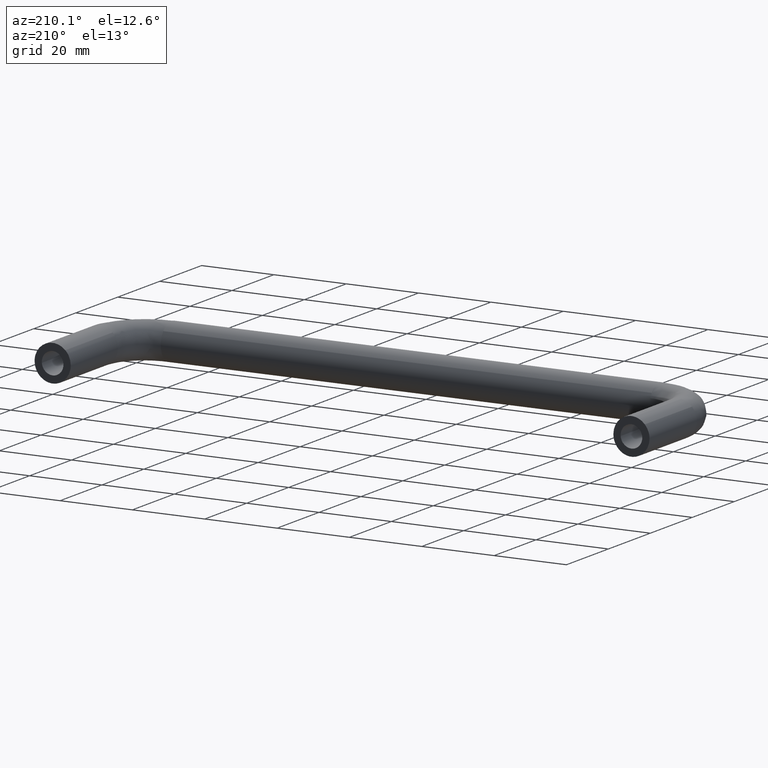
[diagram: clean part render]
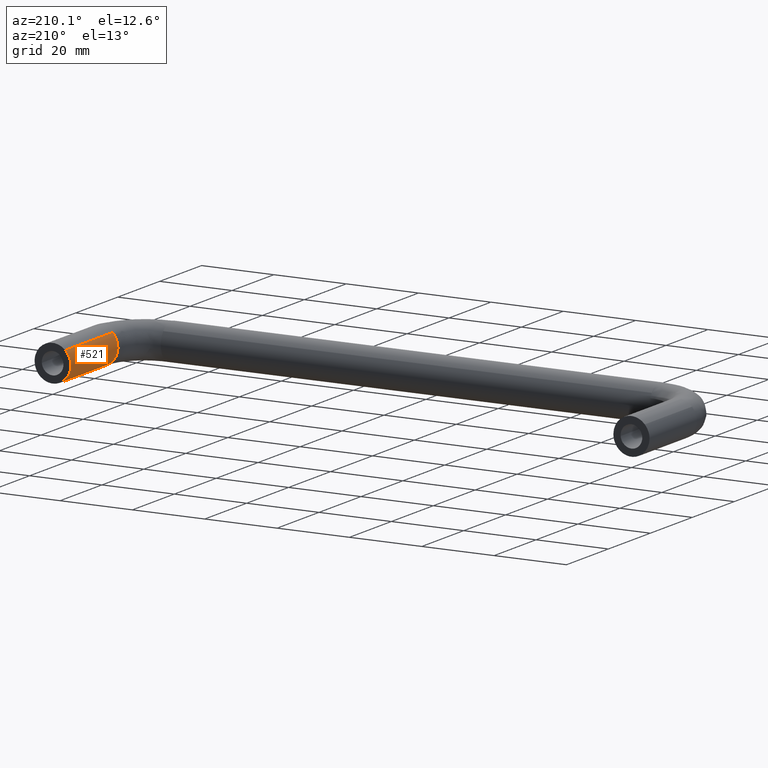
[diagram: same view with one face highlighted and labeled with its STEP entity id]
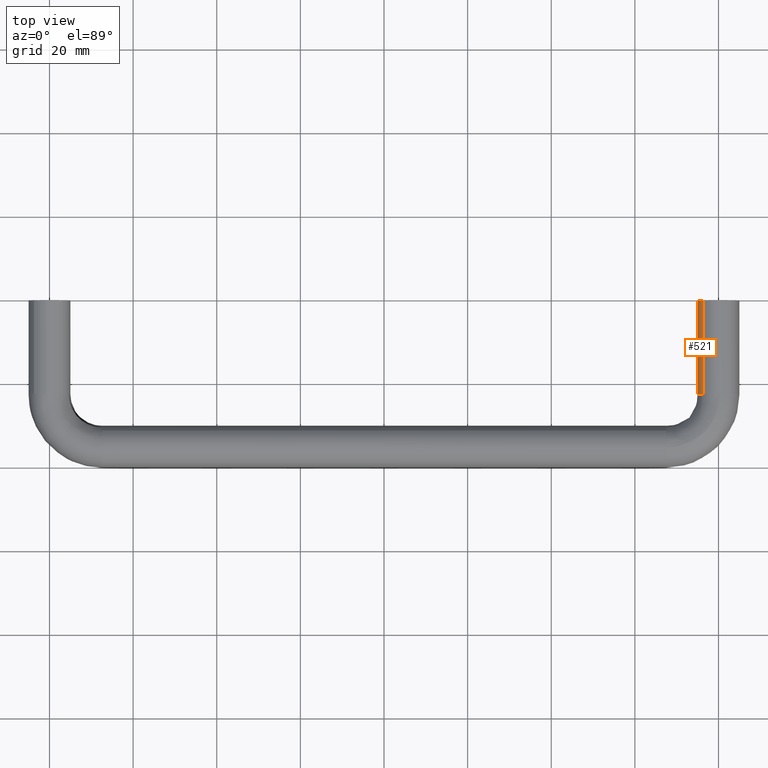
[diagram: same view with one face highlighted and labeled with its STEP entity id]
A machine part, auxiliary view. The second image highlights one B-rep face of the part: STEP entity #521.
A second angle (top view) of the same face is appended — the face is thin or edge-on in the first view.
In plain terms, the highlighted face is a freeform B-spline surface patch.
Its self-contained STEP definition (entity closure, byte-faithful):
#408=CARTESIAN_POINT('',(163.294847860799680,-23.062500001555396,-3.760847986050986));
#409=CARTESIAN_POINT('',(159.743278128228550,-23.062500001555399,-6.872348897346878));
#410=CARTESIAN_POINT('',(156.433747754229100,-23.062500001555389,-3.504546321499253));
#411=CARTESIAN_POINT('',(152.929201432729880,-23.062500001555389,0.061705924271653));
#412=CARTESIAN_POINT('',(156.495453678500810,-23.062500001555389,3.566252245770907));
#413=CARTESIAN_POINT('',(163.294847860799680,0.576562500038907,-3.760847986050986));
#414=CARTESIAN_POINT('',(159.743278128228550,0.576562500038907,-6.872348897346878));
#415=CARTESIAN_POINT('',(156.433747754229100,0.576562500038907,-3.504546321499253));
#416=CARTESIAN_POINT('',(152.929201432729880,0.576562500038908,0.061705924271653));
#417=CARTESIAN_POINT('',(156.495453678500810,0.576562500038908,3.566252245770907));
#425=(BOUNDED_SURFACE()B_SPLINE_SURFACE(2,1,((#408,#413),(#409,#414),(#410,#415),(#411,#416),(#412,#417)),.UNSPECIFIED.,.F.,.F.,.U.)B_SPLINE_SURFACE_WITH_KNOTS((3,2,3),(2,2),(0.0,7.952900397563421,16.237171645025320),(0.0,23.639062501594299),.UNSPECIFIED.)GEOMETRIC_REPRESENTATION_ITEM()RATIONAL_B_SPLINE_SURFACE(((0.977505800795127,0.977505800795127),(0.718822509939086,0.718822509939086),(1.0,1.0),(0.707106781186548,0.707106781186548),(1.0,1.0)))REPRESENTATION_ITEM('')SURFACE());
#426=CARTESIAN_POINT('',(163.294846744962510,-22.499999999999972,-3.760848963626144));
#427=VERTEX_POINT('',#426);
#428=CARTESIAN_POINT('',(159.937169799699600,-22.500000000789459,-4.999605221007975));
#429=VERTEX_POINT('',#428);
#430=CARTESIAN_POINT('',(163.294846744962570,-22.499999999999996,-3.760848963626326));
#431=CARTESIAN_POINT('',(161.880438048094560,-22.499999999999993,-5.0));
#432=CARTESIAN_POINT('',(160.0,-22.500000000000000,-5.0));
#433=CARTESIAN_POINT('',(159.968583659156850,-22.500000000000000,-5.000000000000001));
#434=CARTESIAN_POINT('',(159.937169799699660,-22.500000000789463,-4.999605221007975));
#442=(BOUNDED_CURVE()B_SPLINE_CURVE(2,(#430,#431,#432,#433,#434),.UNSPECIFIED.,.F.,.U.)B_SPLINE_CURVE_WITH_KNOTS((3,2,3),(0.134954764893290,0.250000000000000,0.252215704140435),.UNSPECIFIED.)CURVE()GEOMETRIC_REPRESENTATION_ITEM()RATIONAL_B_SPLINE_CURVE((0.854482188675951,0.865216123121782,1.0,0.997404141129478,0.994854295500936))REPRESENTATION_ITEM(''));
#443=EDGE_CURVE('',#427,#429,#442,.T.);
#444=ORIENTED_EDGE('',*,*,#443,.T.);
#445=CARTESIAN_POINT('',(155.0,-22.500000000000000,0.0));
#446=VERTEX_POINT('',#445);
#447=CARTESIAN_POINT('',(159.937169799699690,-22.500000000789456,-4.999605221007975));
#448=CARTESIAN_POINT('',(155.000000000000030,-22.499999999999993,-4.937559647791153));
#449=CARTESIAN_POINT('',(155.0,-22.500000000000000,0.0));
#457=(BOUNDED_CURVE()B_SPLINE_CURVE(2,(#447,#448,#449),.UNSPECIFIED.,.F.,.U.)B_SPLINE_CURVE_WITH_KNOTS((3,3),(0.252215704140436,0.500000000000000),.UNSPECIFIED.)CURVE()GEOMETRIC_REPRESENTATION_ITEM()RATIONAL_B_SPLINE_CURVE((0.994854295500935,0.709702640057070,1.0))REPRESENTATION_ITEM(''));
#458=EDGE_CURVE('',#429,#446,#457,.T.);
#459=ORIENTED_EDGE('',*,*,#458,.T.);
#460=CARTESIAN_POINT('',(156.495454233629910,-22.500000000000000,3.566252791294635));
#461=VERTEX_POINT('',#460);
#462=CARTESIAN_POINT('',(155.0,-22.500000000000000,0.0));
#463=CARTESIAN_POINT('',(155.000000000000060,-22.500000000000004,2.096674923959875));
#464=CARTESIAN_POINT('',(156.495454233629940,-22.499999999999996,3.566252791294634));
#472=(BOUNDED_CURVE()B_SPLINE_CURVE(2,(#462,#463,#464),.UNSPECIFIED.,.F.,.U.)B_SPLINE_CURVE_WITH_KNOTS((3,3),(0.500000000000000,0.626316804567075),.UNSPECIFIED.)CURVE()GEOMETRIC_REPRESENTATION_ITEM()RATIONAL_B_SPLINE_CURVE((1.0,0.852010658080478,0.853569642411023))REPRESENTATION_ITEM(''));
#473=EDGE_CURVE('',#446,#461,#472,.T.);
#474=ORIENTED_EDGE('',*,*,#473,.T.);
#475=CARTESIAN_POINT('',(156.495454226941400,2.256528E-014,3.566252784721851));
#476=VERTEX_POINT('',#475);
#477=CARTESIAN_POINT('',(156.495454233629910,-22.500000000000000,3.566252791294635));
#478=CARTESIAN_POINT('',(156.495454226941400,2.256528E-014,3.566252784721851));
#479=QUASI_UNIFORM_CURVE('',1,(#477,#478),.UNSPECIFIED.,.F.,.U.);
#480=EDGE_CURVE('',#461,#476,#479,.T.);
#481=ORIENTED_EDGE('',*,*,#480,.T.);
#482=CARTESIAN_POINT('',(155.0,2.081668E-014,0.0));
#483=VERTEX_POINT('',#482);
#484=CARTESIAN_POINT('',(155.0,2.081668E-014,0.0));
#485=CARTESIAN_POINT('',(155.000000000000060,2.081668E-014,2.096674912933399));
#486=CARTESIAN_POINT('',(156.495454226941430,2.256528E-014,3.566252784721851));
#494=(BOUNDED_CURVE()B_SPLINE_CURVE(2,(#484,#485,#486),.UNSPECIFIED.,.F.,.U.)B_SPLINE_CURVE_WITH_KNOTS((3,3),(0.500000000000000,0.626316804001081),.UNSPECIFIED.)CURVE()GEOMETRIC_REPRESENTATION_ITEM()RATIONAL_B_SPLINE_CURVE((1.0,0.852010658743582,0.853569642397052))REPRESENTATION_ITEM(''));
#495=EDGE_CURVE('',#483,#476,#494,.T.);
#496=ORIENTED_EDGE('',*,*,#495,.F.);
#497=CARTESIAN_POINT('',(163.294846758402000,2.222036E-014,-3.760848951851971));
#498=VERTEX_POINT('',#497);
#499=CARTESIAN_POINT('',(163.294846758402120,2.081668E-014,-3.760848951852134));
#500=CARTESIAN_POINT('',(161.880438058292010,2.081668E-014,-5.0));
#501=CARTESIAN_POINT('',(160.0,2.081668E-014,-5.0));
#502=CARTESIAN_POINT('',(155.000000000000030,2.081668E-014,-5.000000000000001));
#503=CARTESIAN_POINT('',(155.0,2.081668E-014,0.0));
#511=(BOUNDED_CURVE()B_SPLINE_CURVE(2,(#499,#500,#501,#502,#503),.UNSPECIFIED.,.F.,.U.)B_SPLINE_CURVE_WITH_KNOTS((3,2,3),(0.134954764353501,0.250000000000000,0.500000000000000),.UNSPECIFIED.)CURVE()GEOMETRIC_REPRESENTATION_ITEM()RATIONAL_B_SPLINE_CURVE((0.854482188575224,0.865216122489380,1.0,0.707106781186548,1.0))REPRESENTATION_ITEM(''));
#512=EDGE_CURVE('',#498,#483,#511,.T.);
#513=ORIENTED_EDGE('',*,*,#512,.F.);
#514=CARTESIAN_POINT('',(163.294846744962510,-22.499999999999972,-3.760848963626144));
#515=CARTESIAN_POINT('',(163.294846758402000,2.222036E-014,-3.760848951851971));
#516=QUASI_UNIFORM_CURVE('',1,(#514,#515),.UNSPECIFIED.,.F.,.U.);
#517=EDGE_CURVE('',#427,#498,#516,.T.);
#518=ORIENTED_EDGE('',*,*,#517,.F.);
#519=EDGE_LOOP('',(#444,#459,#474,#481,#496,#513,#518));
#520=FACE_OUTER_BOUND('',#519,.T.);
#521=ADVANCED_FACE('',(#520),#425,.T.);